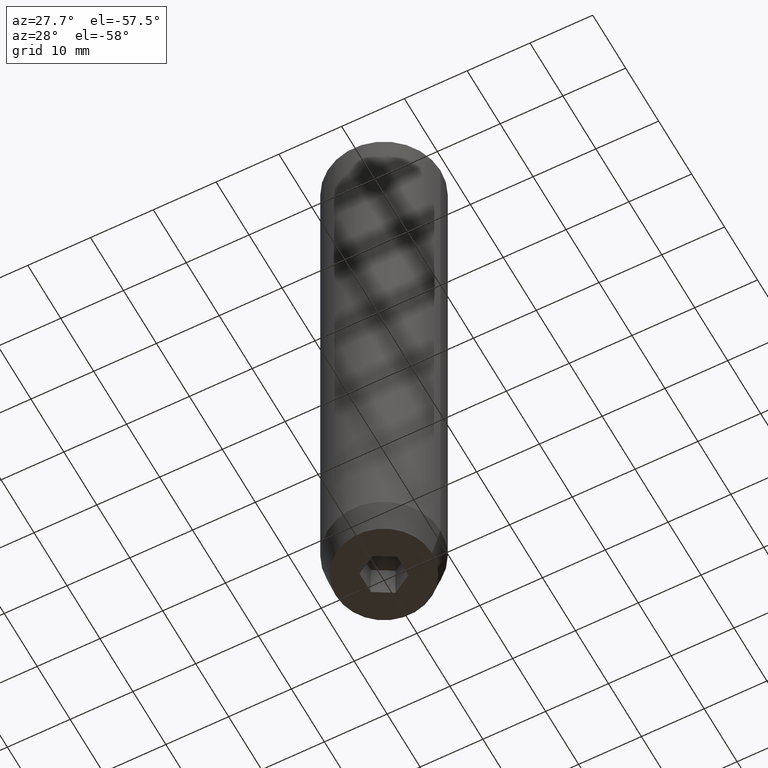
[diagram: clean part render]
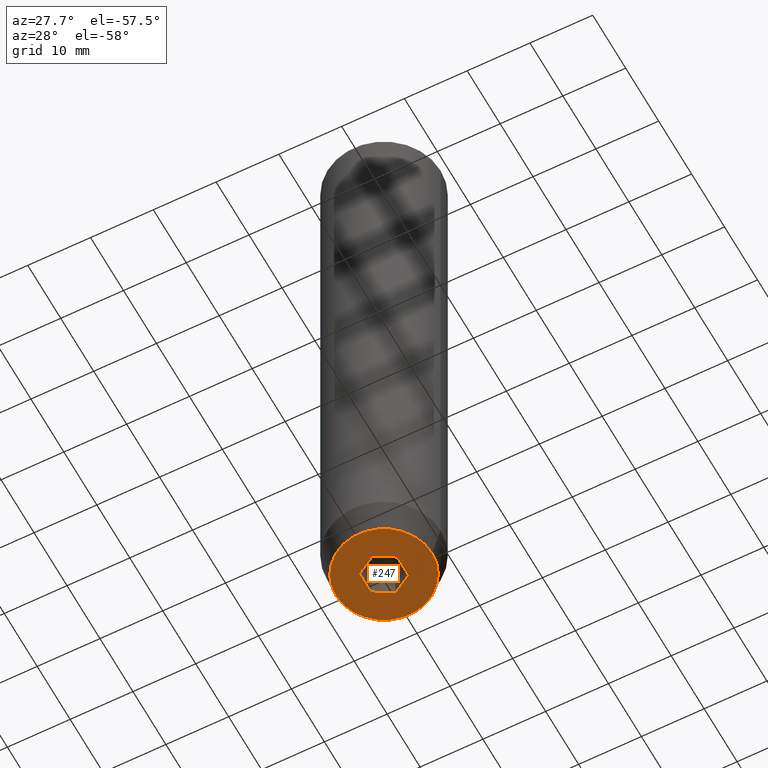
[diagram: same view with one face highlighted and labeled with its STEP entity id]
A machine part, auxiliary view. The second image highlights one B-rep face of the part: STEP entity #247.
In plain terms, the highlighted planar face has unit normal (0, 0, -1).
Its self-contained STEP definition (entity closure, byte-faithful):
#12 = ORIENTED_EDGE ( 'NONE', *, *, #196, .F. ) ;
#22 = LINE ( 'NONE', #211, #257 ) ;
#26 = CARTESIAN_POINT ( 'NONE',  ( 2.168404344971008868E-16, 3.464101615137755275, -100.0000000000000000 ) ) ;
#36 = VERTEX_POINT ( 'NONE', #62 ) ;
#41 = CARTESIAN_POINT ( 'NONE',  ( -3.000000000000000444, 7.511572993685798115E-16, -100.0000000000000000 ) ) ;
#49 = ORIENTED_EDGE ( 'NONE', *, *, #219, .F. ) ;
#50 = DIRECTION ( 'NONE',  ( -2.503857664561932376E-16, -1.000000000000000000, 0.000000000000000000 ) ) ;
#54 = LINE ( 'NONE', #590, #308 ) ;
#55 = CARTESIAN_POINT ( 'NONE',  ( 2.999999999999999112, -1.732050807568876971, -100.0000000000000000 ) ) ;
#62 = CARTESIAN_POINT ( 'NONE',  ( -3.000000000000000888, -1.732050807568876527, -100.0000000000000000 ) ) ;
#71 = CARTESIAN_POINT ( 'NONE',  ( 2.999999999999999556, -7.511572993685796142E-16, -100.0000000000000000 ) ) ;
#80 = VERTEX_POINT ( 'NONE', #391 ) ;
#85 = VERTEX_POINT ( 'NONE', #433 ) ;
#100 = LINE ( 'NONE', #244, #112 ) ;
#112 = VECTOR ( 'NONE', #290, 1000.000000000000114 ) ;
#126 = VERTEX_POINT ( 'NONE', #563 ) ;
#149 = DIRECTION ( 'NONE',  ( -1.000000000000000000, 0.000000000000000000, -0.000000000000000000 ) ) ;
#160 = DIRECTION ( 'NONE',  ( -0.000000000000000000, -0.000000000000000000, 1.000000000000000000 ) ) ;
#161 = FACE_BOUND ( 'NONE', #409, .T. ) ;
#163 = EDGE_CURVE ( 'NONE', #368, #605, #334, .T. ) ;
#170 = EDGE_LOOP ( 'NONE', ( #49, #505 ) ) ;
#180 = ORIENTED_EDGE ( 'NONE', *, *, #464, .F. ) ;
#196 = EDGE_CURVE ( 'NONE', #287, #80, #54, .T. ) ;
#211 = CARTESIAN_POINT ( 'NONE',  ( -1.499999999999999112, -2.598076211353316012, -100.0000000000000000 ) ) ;
#219 = EDGE_CURVE ( 'NONE', #126, #418, #359, .T. ) ;
#244 = CARTESIAN_POINT ( 'NONE',  ( 1.499999999999999112, 2.598076211353316012, -100.0000000000000000 ) ) ;
#247 = ADVANCED_FACE ( 'NONE', ( #161, #393 ), #608, .T. ) ;
#248 = AXIS2_PLACEMENT_3D ( 'NONE', #443, #483, #255 ) ;
#251 = CARTESIAN_POINT ( 'NONE',  ( -7.660254037844380193, 1.020146339021394272E-15, -100.0000000000000000 ) ) ;
#255 = DIRECTION ( 'NONE',  ( 1.000000000000000000, 0.000000000000000000, 0.000000000000000000 ) ) ;
#256 = VECTOR ( 'NONE', #289, 1000.000000000000000 ) ;
#257 = VECTOR ( 'NONE', #446, 1000.000000000000114 ) ;
#279 = EDGE_CURVE ( 'NONE', #85, #287, #549, .T. ) ;
#280 = ORIENTED_EDGE ( 'NONE', *, *, #163, .F. ) ;
#287 = VERTEX_POINT ( 'NONE', #55 ) ;
#289 = DIRECTION ( 'NONE',  ( 2.503857664561932376E-16, 1.000000000000000000, 0.000000000000000000 ) ) ;
#290 = DIRECTION ( 'NONE',  ( 0.8660254037844387076, -0.4999999999999997780, 0.000000000000000000 ) ) ;
#293 = CARTESIAN_POINT ( 'NONE',  ( -1.499999999999999334, 2.598076211353316456, -100.0000000000000000 ) ) ;
#308 = VECTOR ( 'NONE', #532, 999.9999999999998863 ) ;
#328 = ORIENTED_EDGE ( 'NONE', *, *, #455, .F. ) ;
#334 = LINE ( 'NONE', #293, #494 ) ;
#353 = ORIENTED_EDGE ( 'NONE', *, *, #594, .F. ) ;
#359 = CIRCLE ( 'NONE', #248, 7.660254037844380193 ) ;
#368 = VERTEX_POINT ( 'NONE', #376 ) ;
#374 = VECTOR ( 'NONE', #50, 1000.000000000000000 ) ;
#376 = CARTESIAN_POINT ( 'NONE',  ( -3.000000000000000000, 1.732050807568877859, -100.0000000000000000 ) ) ;
#391 = CARTESIAN_POINT ( 'NONE',  ( 0.000000000000000000, -3.464101615137753942, -100.0000000000000000 ) ) ;
#393 = FACE_OUTER_BOUND ( 'NONE', #170, .T. ) ;
#409 = EDGE_LOOP ( 'NONE', ( #280, #180, #353, #12, #498, #328 ) ) ;
#418 = VERTEX_POINT ( 'NONE', #251 ) ;
#433 = CARTESIAN_POINT ( 'NONE',  ( 3.000000000000000000, 1.732050807568877193, -100.0000000000000000 ) ) ;
#436 = EDGE_CURVE ( 'NONE', #418, #126, #485, .T. ) ;
#443 = CARTESIAN_POINT ( 'NONE',  ( 0.000000000000000000, 0.000000000000000000, -100.0000000000000000 ) ) ;
#446 = DIRECTION ( 'NONE',  ( -0.8660254037844387076, 0.4999999999999997780, 0.000000000000000000 ) ) ;
#455 = EDGE_CURVE ( 'NONE', #605, #85, #100, .T. ) ;
#464 = EDGE_CURVE ( 'NONE', #36, #368, #525, .T. ) ;
#483 = DIRECTION ( 'NONE',  ( -0.000000000000000000, -0.000000000000000000, 1.000000000000000000 ) ) ;
#485 = CIRCLE ( 'NONE', #534, 7.660254037844380193 ) ;
#494 = VECTOR ( 'NONE', #529, 1000.000000000000114 ) ;
#498 = ORIENTED_EDGE ( 'NONE', *, *, #279, .F. ) ;
#505 = ORIENTED_EDGE ( 'NONE', *, *, #436, .F. ) ;
#525 = LINE ( 'NONE', #41, #256 ) ;
#529 = DIRECTION ( 'NONE',  ( 0.8660254037844387076, 0.4999999999999997224, 0.000000000000000000 ) ) ;
#532 = DIRECTION ( 'NONE',  ( -0.8660254037844387076, -0.4999999999999999445, 0.000000000000000000 ) ) ;
#534 = AXIS2_PLACEMENT_3D ( 'NONE', #618, #160, #630 ) ;
#547 = CARTESIAN_POINT ( 'NONE',  ( 0.000000000000000000, 7.660254037844380193, -100.0000000000000000 ) ) ;
#549 = LINE ( 'NONE', #71, #374 ) ;
#563 = CARTESIAN_POINT ( 'NONE',  ( 7.660254037844380193, 0.000000000000000000, -100.0000000000000000 ) ) ;
#590 = CARTESIAN_POINT ( 'NONE',  ( 1.499999999999999556, -2.598076211353316012, -100.0000000000000000 ) ) ;
#592 = DIRECTION ( 'NONE',  ( 0.000000000000000000, 0.000000000000000000, -1.000000000000000000 ) ) ;
#594 = EDGE_CURVE ( 'NONE', #80, #36, #22, .T. ) ;
#605 = VERTEX_POINT ( 'NONE', #26 ) ;
#608 = PLANE ( 'NONE',  #632 ) ;
#618 = CARTESIAN_POINT ( 'NONE',  ( 0.000000000000000000, 0.000000000000000000, -100.0000000000000000 ) ) ;
#630 = DIRECTION ( 'NONE',  ( 1.000000000000000000, 0.000000000000000000, 0.000000000000000000 ) ) ;
#632 = AXIS2_PLACEMENT_3D ( 'NONE', #547, #592, #149 ) ;